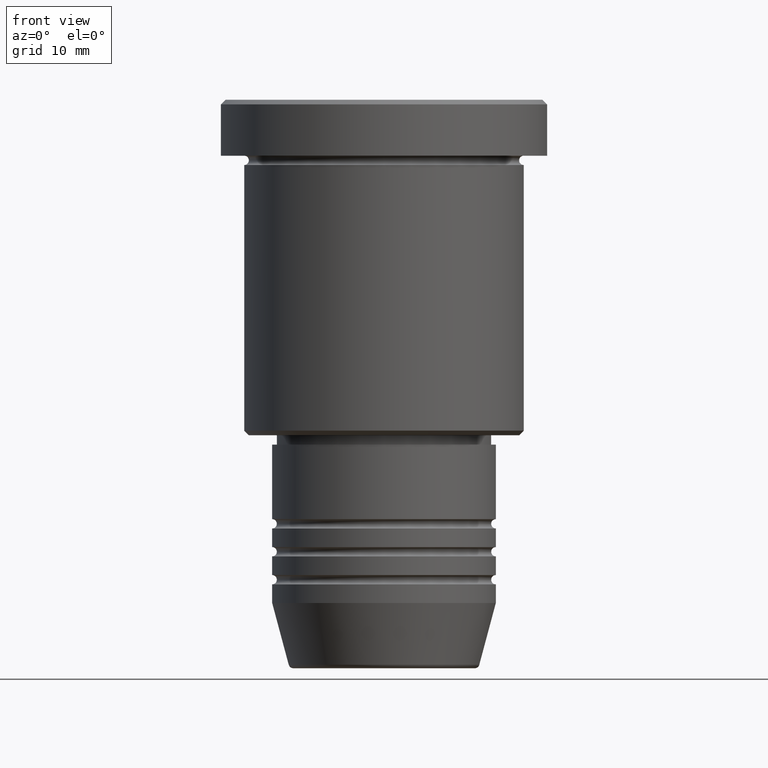
[diagram: clean part render]
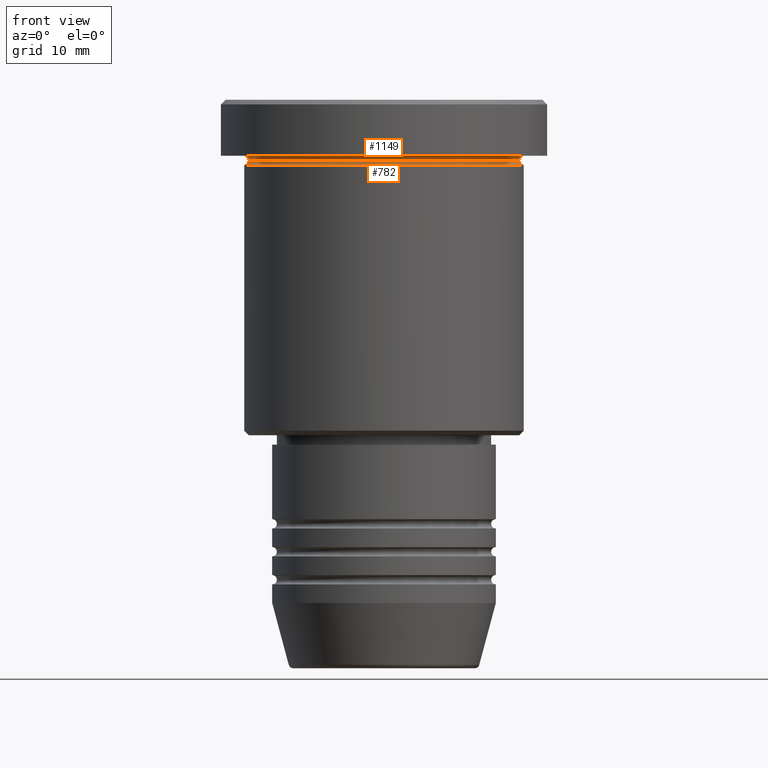
[diagram: same view with one multi-face feature highlighted, each face labeled with its STEP entity id]
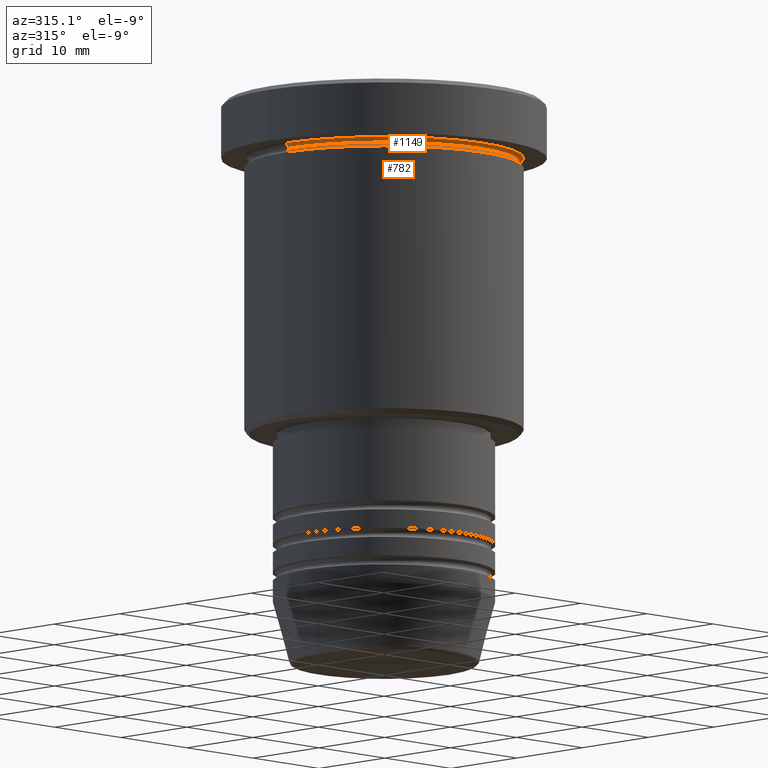
[diagram: same view with one multi-face feature highlighted, each face labeled with its STEP entity id]
A machine part, front view. The highlighted faces form ONE feature: a constant-radius fillet chain: 2 tangent blend faces with common blend radius 0.5 mm. The faces share edges in the B-rep.
A second angle (auxiliary view) of the same feature is appended — it is thin or edge-on in the first view.
Their STEP definitions:
[1] entity #1149 (Torus):
#6 = CARTESIAN_POINT ( 'NONE',  ( -14.49999999999999822, 1.806354028742345802E-15, -6.499999999999995559 ) ) ;
#32 = CIRCLE ( 'NONE', #942, 14.49999999999999822 ) ;
#116 = DIRECTION ( 'NONE',  ( 0.000000000000000000, 0.000000000000000000, -1.000000000000000000 ) ) ;
#136 = DIRECTION ( 'NONE',  ( -1.000000000000000000, 0.000000000000000000, 0.000000000000000000 ) ) ;
#141 = CARTESIAN_POINT ( 'NONE',  ( 0.000000000000000000, 0.000000000000000000, -6.499999999999995559 ) ) ;
#188 = EDGE_LOOP ( 'NONE', ( #611, #438, #1065, #1157 ) ) ;
#228 = FACE_OUTER_BOUND ( 'NONE', #188, .T. ) ;
#284 = VERTEX_POINT ( 'NONE', #793 ) ;
#295 = TOROIDAL_SURFACE ( 'NONE', #545, 15.00000000000000000, 0.5000000000000000000 ) ;
#319 = CARTESIAN_POINT ( 'NONE',  ( 15.00000000000000000, 1.836970198721029589E-15, -5.999999999999994671 ) ) ;
#362 = CIRCLE ( 'NONE', #700, 0.5000000000000004441 ) ;
#376 = EDGE_CURVE ( 'NONE', #820, #952, #32, .T. ) ;
#382 = AXIS2_PLACEMENT_3D ( 'NONE', #563, #1038, #136 ) ;
#405 = DIRECTION ( 'NONE',  ( -1.000000000000000000, 0.000000000000000000, 0.000000000000000000 ) ) ;
#438 = ORIENTED_EDGE ( 'NONE', *, *, #583, .T. ) ;
#462 = CARTESIAN_POINT ( 'NONE',  ( -15.00000000000000000, 0.000000000000000000, -6.499999999999995559 ) ) ;
#486 = CARTESIAN_POINT ( 'NONE',  ( 0.000000000000000000, 0.000000000000000000, -6.499999999999995559 ) ) ;
#499 = DIRECTION ( 'NONE',  ( 0.000000000000000000, 0.000000000000000000, -1.000000000000000000 ) ) ;
#500 = CARTESIAN_POINT ( 'NONE',  ( 15.00000000000000000, 1.836970198721029589E-15, -6.499999999999995559 ) ) ;
#545 = AXIS2_PLACEMENT_3D ( 'NONE', #141, #499, #405 ) ;
#563 = CARTESIAN_POINT ( 'NONE',  ( 0.000000000000000000, 0.000000000000000000, -5.999999999999995559 ) ) ;
#565 = DIRECTION ( 'NONE',  ( -0.000000000000000000, -1.000000000000000000, -0.000000000000000000 ) ) ;
#583 = EDGE_CURVE ( 'NONE', #952, #1114, #362, .T. ) ;
#601 = EDGE_CURVE ( 'NONE', #284, #1114, #1076, .T. ) ;
#611 = ORIENTED_EDGE ( 'NONE', *, *, #376, .T. ) ;
#681 = DIRECTION ( 'NONE',  ( -1.224646799147353207E-16, 1.000000000000000000, 0.000000000000000000 ) ) ;
#684 = CIRCLE ( 'NONE', #720, 0.5000000000000004441 ) ;
#700 = AXIS2_PLACEMENT_3D ( 'NONE', #500, #681, #956 ) ;
#720 = AXIS2_PLACEMENT_3D ( 'NONE', #462, #565, #116 ) ;
#793 = CARTESIAN_POINT ( 'NONE',  ( -15.00000000000000000, 0.000000000000000000, -5.999999999999994671 ) ) ;
#820 = VERTEX_POINT ( 'NONE', #6 ) ;
#854 = DIRECTION ( 'NONE',  ( -0.000000000000000000, -0.000000000000000000, 1.000000000000000000 ) ) ;
#942 = AXIS2_PLACEMENT_3D ( 'NONE', #486, #854, #1011 ) ;
#948 = EDGE_CURVE ( 'NONE', #820, #284, #684, .T. ) ;
#952 = VERTEX_POINT ( 'NONE', #1026 ) ;
#956 = DIRECTION ( 'NONE',  ( -1.000000000000000000, -1.224646799147349509E-16, 0.000000000000000000 ) ) ;
#1011 = DIRECTION ( 'NONE',  ( 1.000000000000000000, 0.000000000000000000, 0.000000000000000000 ) ) ;
#1026 = CARTESIAN_POINT ( 'NONE',  ( 14.49999999999999822, 0.000000000000000000, -6.499999999999995559 ) ) ;
#1038 = DIRECTION ( 'NONE',  ( -0.000000000000000000, -0.000000000000000000, 1.000000000000000000 ) ) ;
#1065 = ORIENTED_EDGE ( 'NONE', *, *, #601, .F. ) ;
#1076 = CIRCLE ( 'NONE', #382, 15.00000000000000000 ) ;
#1114 = VERTEX_POINT ( 'NONE', #319 ) ;
#1149 = ADVANCED_FACE ( 'NONE', ( #228 ), #295, .F. ) ;
#1157 = ORIENTED_EDGE ( 'NONE', *, *, #948, .F. ) ;
[2] entity #782 (Torus):
#6 = CARTESIAN_POINT ( 'NONE',  ( -14.49999999999999822, 1.806354028742345802E-15, -6.499999999999995559 ) ) ;
#32 = CIRCLE ( 'NONE', #942, 14.49999999999999822 ) ;
#41 = DIRECTION ( 'NONE',  ( 1.000000000000000000, 0.000000000000000000, 0.000000000000000000 ) ) ;
#68 = EDGE_CURVE ( 'NONE', #820, #1023, #160, .T. ) ;
#94 = CARTESIAN_POINT ( 'NONE',  ( -15.00000000000000000, 1.836970198721029589E-15, -6.499999999999995559 ) ) ;
#160 = CIRCLE ( 'NONE', #359, 0.5000000000000004441 ) ;
#178 = DIRECTION ( 'NONE',  ( 1.000000000000000000, 0.000000000000000000, 0.000000000000000000 ) ) ;
#183 = ORIENTED_EDGE ( 'NONE', *, *, #322, .F. ) ;
#197 = DIRECTION ( 'NONE',  ( -0.000000000000000000, -0.000000000000000000, 1.000000000000000000 ) ) ;
#275 = ORIENTED_EDGE ( 'NONE', *, *, #376, .F. ) ;
#322 = EDGE_CURVE ( 'NONE', #952, #1029, #795, .T. ) ;
#359 = AXIS2_PLACEMENT_3D ( 'NONE', #94, #643, #451 ) ;
#373 = DIRECTION ( 'NONE',  ( 0.000000000000000000, 0.000000000000000000, -1.000000000000000000 ) ) ;
#376 = EDGE_CURVE ( 'NONE', #820, #952, #32, .T. ) ;
#414 = FACE_OUTER_BOUND ( 'NONE', #964, .T. ) ;
#434 = CARTESIAN_POINT ( 'NONE',  ( 0.000000000000000000, 0.000000000000000000, -6.499999999999995559 ) ) ;
#451 = DIRECTION ( 'NONE',  ( -1.000000000000000000, 1.224646799147349509E-16, 0.000000000000000000 ) ) ;
#486 = CARTESIAN_POINT ( 'NONE',  ( 0.000000000000000000, 0.000000000000000000, -6.499999999999995559 ) ) ;
#495 = DIRECTION ( 'NONE',  ( -0.000000000000000000, -0.000000000000000000, 1.000000000000000000 ) ) ;
#586 = DIRECTION ( 'NONE',  ( 0.000000000000000000, -1.000000000000000000, 0.000000000000000000 ) ) ;
#643 = DIRECTION ( 'NONE',  ( 1.224646799147353207E-16, 1.000000000000000000, 0.000000000000000000 ) ) ;
#657 = CARTESIAN_POINT ( 'NONE',  ( 15.00000000000000000, 0.000000000000000000, -6.499999999999995559 ) ) ;
#682 = TOROIDAL_SURFACE ( 'NONE', #719, 15.00000000000000000, 0.5000000000000000000 ) ;
#719 = AXIS2_PLACEMENT_3D ( 'NONE', #434, #495, #178 ) ;
#744 = CIRCLE ( 'NONE', #798, 15.00000000000000000 ) ;
#751 = CARTESIAN_POINT ( 'NONE',  ( 15.00000000000000000, 0.000000000000000000, -6.999999999999995559 ) ) ;
#782 = ADVANCED_FACE ( 'NONE', ( #414 ), #682, .F. ) ;
#795 = CIRCLE ( 'NONE', #1044, 0.5000000000000004441 ) ;
#798 = AXIS2_PLACEMENT_3D ( 'NONE', #1115, #197, #41 ) ;
#799 = ORIENTED_EDGE ( 'NONE', *, *, #990, .T. ) ;
#820 = VERTEX_POINT ( 'NONE', #6 ) ;
#850 = ORIENTED_EDGE ( 'NONE', *, *, #68, .T. ) ;
#854 = DIRECTION ( 'NONE',  ( -0.000000000000000000, -0.000000000000000000, 1.000000000000000000 ) ) ;
#932 = CARTESIAN_POINT ( 'NONE',  ( -15.00000000000000000, 1.836970198721029589E-15, -6.999999999999995559 ) ) ;
#942 = AXIS2_PLACEMENT_3D ( 'NONE', #486, #854, #1011 ) ;
#952 = VERTEX_POINT ( 'NONE', #1026 ) ;
#964 = EDGE_LOOP ( 'NONE', ( #275, #850, #799, #183 ) ) ;
#990 = EDGE_CURVE ( 'NONE', #1023, #1029, #744, .T. ) ;
#1011 = DIRECTION ( 'NONE',  ( 1.000000000000000000, 0.000000000000000000, 0.000000000000000000 ) ) ;
#1023 = VERTEX_POINT ( 'NONE', #932 ) ;
#1026 = CARTESIAN_POINT ( 'NONE',  ( 14.49999999999999822, 0.000000000000000000, -6.499999999999995559 ) ) ;
#1029 = VERTEX_POINT ( 'NONE', #751 ) ;
#1044 = AXIS2_PLACEMENT_3D ( 'NONE', #657, #586, #373 ) ;
#1115 = CARTESIAN_POINT ( 'NONE',  ( 0.000000000000000000, 0.000000000000000000, -6.999999999999995559 ) ) ;